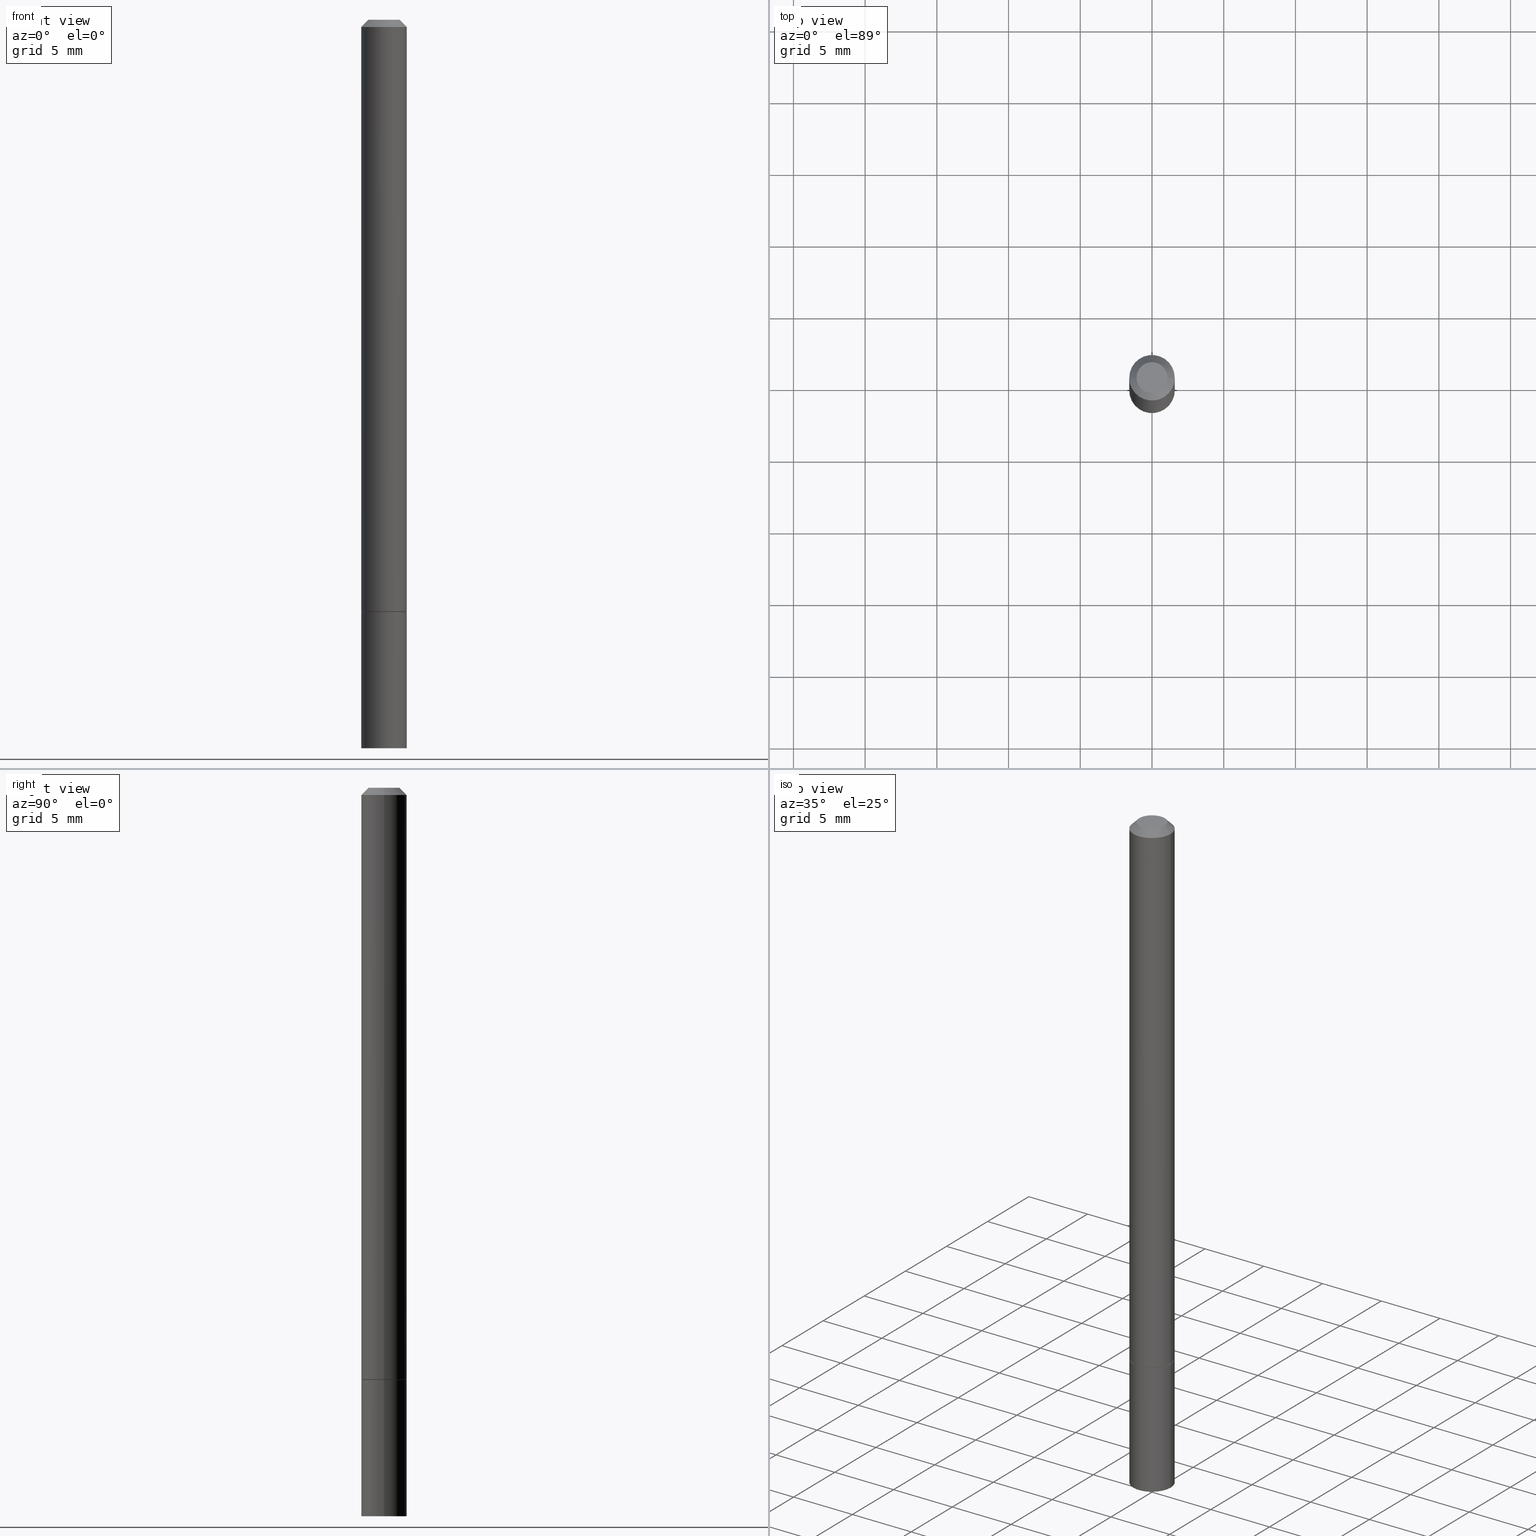
[diagram: canonical four-view strip — front | top / right | iso, engineering-drawing reading convention]
A machine part, canonical four-view strip (front | top / right | iso — engineering-drawing reading convention). The complete STEP part file that produces these views, byte-faithful:
ISO-10303-21;
HEADER;
FILE_DESCRIPTION (( 'STEP AP203' ),
    '1' );
FILE_NAME ('37396.STEP',
    '2024-02-27T21:26:25',
    ( '' ),
    ( '' ),
    'SwSTEP 2.0',
    'SolidWorks 2023',
    '' );
FILE_SCHEMA (( 'CONFIG_CONTROL_DESIGN' ));
ENDSEC;

DATA;
#1 = CARTESIAN_POINT ( 'NONE',  ( 4.364351673554406281E-16, 0.06249999999999303335, -2.000000000000000444 ) ) ;
#2 = DIRECTION ( 'NONE',  ( 1.000000000000000000, -6.982962677686261189E-15, 0.000000000000000000 ) ) ;
#3 = AXIS2_PLACEMENT_3D ( 'NONE', #246, #74, #278 ) ;
#4 = ADVANCED_FACE ( 'NONE', ( #73 ), #261, .T. ) ;
#5 = DIRECTION ( 'NONE',  ( 0.7071067811865464625, -7.319954787623252890E-15, -0.7071067811865486830 ) ) ;
#6 = PERSON_AND_ORGANIZATION ( #314, #109 ) ;
#7 = DIRECTION ( 'NONE',  ( 1.000000000000000000, -6.982962677686260400E-15, 0.000000000000000000 ) ) ;
#8 = FACE_OUTER_BOUND ( 'NONE', #296, .T. ) ;
#9 = PERSON_AND_ORGANIZATION_ROLE ( 'creator' ) ;
#10 = DIRECTION ( 'NONE',  ( 1.000000000000000000, -6.982962677686266711E-15, 0.000000000000000000 ) ) ;
#11 = DATE_AND_TIME ( #157, #143 ) ;
#12 = CARTESIAN_POINT ( 'NONE',  ( 0.06249999999999991673, -4.364351673553910778E-16, 3.047610484872455667E-30 ) ) ;
#13 = VERTEX_POINT ( 'NONE', #302 ) ;
#14 = EDGE_CURVE ( 'NONE', #99, #220, #193, .T. ) ;
#15 = AXIS2_PLACEMENT_3D ( 'NONE', #227, #342, #263 ) ;
#16 = AXIS2_PLACEMENT_3D ( 'NONE', #330, #182, #71 ) ;
#17 = EDGE_LOOP ( 'NONE', ( #136, #252 ) ) ;
#18 = FACE_OUTER_BOUND ( 'NONE', #305, .T. ) ;
#19 = ADVANCED_FACE ( 'NONE', ( #191 ), #216, .F. ) ;
#20 = ORIENTED_EDGE ( 'NONE', *, *, #197, .F. ) ;
#21 = EDGE_LOOP ( 'NONE', ( #361, #243, #277, #334 ) ) ;
#22 = EDGE_LOOP ( 'NONE', ( #236, #335, #362, #162 ) ) ;
#23 = ADVANCED_FACE ( 'NONE', ( #18 ), #51, .T. ) ;
#24 = DIRECTION ( 'NONE',  ( -2.445468806185136597E-29, 3.491481338843145583E-15, 1.000000000000000000 ) ) ;
#25 = LINE ( 'NONE', #255, #242 ) ;
#26 = FACE_OUTER_BOUND ( 'NONE', #22, .T. ) ;
#27 = LINE ( 'NONE', #140, #262 ) ;
#28 = AXIS2_PLACEMENT_3D ( 'NONE', #61, #285, #366 ) ;
#29 = CARTESIAN_POINT ( 'NONE',  ( 4.890937612370274910E-31, -6.982962677686295307E-17, -0.02000000000000000736 ) ) ;
#30 = AXIS2_PLACEMENT_3D ( 'NONE', #281, #358, #337 ) ;
#31 = CIRCLE ( 'NONE', #213, 0.06250000000000001388 ) ;
#32 = CYLINDRICAL_SURFACE ( 'NONE', #298, 0.06249999999999991673 ) ;
#33 = ORIENTED_EDGE ( 'NONE', *, *, #14, .T. ) ;
#34 = ADVANCED_FACE ( 'NONE', ( #60 ), #288, .T. ) ;
#35 = DIRECTION ( 'NONE',  ( -2.445468806185136597E-29, 3.491481338843145583E-15, 1.000000000000000000 ) ) ;
#36 = ORIENTED_EDGE ( 'NONE', *, *, #348, .F. ) ;
#37 = CLOSED_SHELL ( 'NONE', ( #293, #34, #52, #4, #218, #102, #199, #19 ) ) ;
#38 = PRODUCT_DEFINITION_SHAPE ( 'NONE', 'NONE',  #135 ) ;
#39 = DIRECTION ( 'NONE',  ( 1.000000000000000000, -6.982962677686261189E-15, 0.000000000000000000 ) ) ;
#40 = EDGE_CURVE ( 'NONE', #217, #184, #339, .T. ) ;
#41 = APPROVAL_DATE_TIME ( #325, #190 ) ;
#42 = CARTESIAN_POINT ( 'NONE',  ( 4.890937612370274910E-31, -6.982962677686295307E-17, -0.02000000000000000736 ) ) ;
#43 = PRODUCT_RELATED_PRODUCT_CATEGORY ( 'detail', '', ( #245 ) ) ;
#44 = APPROVAL_STATUS ( 'not_yet_approved' ) ;
#45 = ORIENTED_EDGE ( 'NONE', *, *, #105, .T. ) ;
#46 = AXIS2_PLACEMENT_3D ( 'NONE', #347, #142, #2 ) ;
#47 = COORDINATED_UNIVERSAL_TIME_OFFSET ( 5, 0, .BEHIND. ) ;
#48 = APPROVAL_PERSON_ORGANIZATION ( #145, #190, #120 ) ;
#49 = DIRECTION ( 'NONE',  ( -1.000000000000000000, 6.982962677686265922E-15, -4.876176775795935793E-29 ) ) ;
#50 = VERTEX_POINT ( 'NONE', #223 ) ;
#51 = CYLINDRICAL_SURFACE ( 'NONE', #307, 0.06250000000000001388 ) ;
#52 = ADVANCED_FACE ( 'NONE', ( #81 ), #108, .T. ) ;
#53 = ORIENTED_EDGE ( 'NONE', *, *, #202, .F. ) ;
#54 =( NAMED_UNIT ( * ) PLANE_ANGLE_UNIT ( ) SI_UNIT ( $, .RADIAN. ) );
#55 = DIRECTION ( 'NONE',  ( 0.7071067811865232589, -2.468850131082003836E-15, 0.7071067811865715536 ) ) ;
#56 = DESIGN_CONTEXT ( 'detailed design', #273, 'design' ) ;
#57 =( NAMED_UNIT ( * ) SI_UNIT ( $, .STERADIAN. ) SOLID_ANGLE_UNIT ( ) );
#58 = DIRECTION ( 'NONE',  ( -0.7071067811865232589, 7.493145998870265808E-15, 0.7071067811865715536 ) ) ;
#59 = DIRECTION ( 'NONE',  ( -1.000000000000000000, 6.982962677686266711E-15, 0.000000000000000000 ) ) ;
#60 = FACE_OUTER_BOUND ( 'NONE', #304, .T. ) ;
#61 = CARTESIAN_POINT ( 'NONE',  ( 3.971441341244661927E-29, -5.670165694281268417E-15, -1.623999999999999888 ) ) ;
#62 = COORDINATED_UNIVERSAL_TIME_OFFSET ( 5, 0, .BEHIND. ) ;
#63 = AXIS2_PLACEMENT_3D ( 'NONE', #328, #265, #315 ) ;
#64 = PERSON_AND_ORGANIZATION ( #314, #109 ) ;
#65 = VECTOR ( 'NONE', #287, 39.37007874015748143 ) ;
#66 = MANIFOLD_SOLID_BREP ( 'Body-Move/Copy2[1]', #200 ) ;
#67 = EDGE_CURVE ( 'NONE', #99, #219, #144, .T. ) ;
#68 = DIRECTION ( 'NONE',  ( 1.000000000000000000, -6.982962677686267499E-15, 4.876176775795935793E-29 ) ) ;
#69 = DIRECTION ( 'NONE',  ( -2.445468806185136597E-29, 3.491481338843145583E-15, 1.000000000000000000 ) ) ;
#70 = CARTESIAN_POINT ( 'NONE',  ( 0.000000000000000000, 0.000000000000000000, 0.000000000000000000 ) ) ;
#71 = DIRECTION ( 'NONE',  ( -1.000000000000000000, 6.982962677686265922E-15, -4.876176775795935793E-29 ) ) ;
#72 = ORIENTED_EDGE ( 'NONE', *, *, #309, .F. ) ;
#73 = FACE_OUTER_BOUND ( 'NONE', #148, .T. ) ;
#74 = DIRECTION ( 'NONE',  ( -2.445468806185136597E-29, 3.491481338843145583E-15, 1.000000000000000000 ) ) ;
#75 = VERTEX_POINT ( 'NONE', #284 ) ;
#76 = VECTOR ( 'NONE', #128, 39.37007874015748143 ) ;
#77 = AXIS2_PLACEMENT_3D ( 'NONE', #340, #203, #316 ) ;
#78 = CIRCLE ( 'NONE', #28, 0.06250000000000001388 ) ;
#79 = CARTESIAN_POINT ( 'NONE',  ( 0.000000000000000000, 0.000000000000000000, 0.000000000000000000 ) ) ;
#80 = LENGTH_MEASURE_WITH_UNIT ( LENGTH_MEASURE( 0.02539999999999999897 ), #112 );
#81 = FACE_OUTER_BOUND ( 'NONE', #21, .T. ) ;
#82 = CARTESIAN_POINT ( 'NONE',  ( 0.06150000000000001299, -6.103109380297817079E-15, -1.625000000000000000 ) ) ;
#83 = CIRCLE ( 'NONE', #129, 0.06250000000000001388 ) ;
#84 = DIRECTION ( 'NONE',  ( -1.000000000000000000, 6.982962677686265922E-15, -4.876176775795935793E-29 ) ) ;
#85 = MECHANICAL_CONTEXT ( 'NONE', #251, 'mechanical' ) ;
#86 = DIRECTION ( 'NONE',  ( -2.445468806185136597E-29, 3.491481338843145583E-15, 1.000000000000000000 ) ) ;
#87 = EDGE_CURVE ( 'NONE', #75, #13, #155, .T. ) ;
#88 = PLANE ( 'NONE',  #180 ) ;
#89 = CIRCLE ( 'NONE', #322, 0.06249999999999981265 ) ;
#90 = CARTESIAN_POINT ( 'NONE',  ( 0.06250000000000001388, -4.364351673553918173E-16, 3.047610484872460571E-30 ) ) ;
#91 = AXIS2_PLACEMENT_3D ( 'NONE', #196, #86, #286 ) ;
#92 = DIRECTION ( 'NONE',  ( -2.445468806185136597E-29, 3.491481338843145583E-15, 1.000000000000000000 ) ) ;
#93 = APPROVAL_ROLE ( '' ) ;
#94 = EDGE_CURVE ( 'NONE', #13, #332, #259, .T. ) ;
#95 = PLANE ( 'NONE',  #16 ) ;
#96 = CIRCLE ( 'NONE', #207, 0.06150000000000001299 ) ;
#97 = ORIENTED_EDGE ( 'NONE', *, *, #40, .T. ) ;
#98 = EDGE_CURVE ( 'NONE', #332, #50, #31, .T. ) ;
#99 = VERTEX_POINT ( 'NONE', #311 ) ;
#100 = ORIENTED_EDGE ( 'NONE', *, *, #87, .T. ) ;
#101 = EDGE_LOOP ( 'NONE', ( #20, #97, #356, #300 ) ) ;
#102 = ADVANCED_FACE ( 'NONE', ( #26 ), #355, .T. ) ;
#103 = ORIENTED_EDGE ( 'NONE', *, *, #177, .F. ) ;
#104 = EDGE_CURVE ( 'NONE', #189, #184, #25, .T. ) ;
#105 = EDGE_CURVE ( 'NONE', #306, #217, #260, .T. ) ;
#106 = EDGE_LOOP ( 'NONE', ( #158, #33 ) ) ;
#107 = CIRCLE ( 'NONE', #363, 0.06150000000000001299 ) ;
#108 = CONICAL_SURFACE ( 'NONE', #321, 0.06249999999999981265, 0.7853981633974467247 ) ;
#109 = ORGANIZATION ( 'UNSPECIFIED', 'UNSPECIFIED', '' ) ;
#110 = CARTESIAN_POINT ( 'NONE',  ( -0.06249999999999981265, 3.666055405785273851E-16, -0.02000000000000000736 ) ) ;
#111 = LINE ( 'NONE', #115, #65 ) ;
#112 =( LENGTH_UNIT ( ) NAMED_UNIT ( * ) SI_UNIT ( $, .METRE. ) );
#113 = DIRECTION ( 'NONE',  ( -2.445468806185136597E-29, 3.491481338843145583E-15, 1.000000000000000000 ) ) ;
#114 = PRODUCT_DEFINITION_FORMATION_WITH_SPECIFIED_SOURCE ( 'ANY', '', #245, .NOT_KNOWN. ) ;
#115 = CARTESIAN_POINT ( 'NONE',  ( -0.06249999999999981265, 3.666055405785273851E-16, -0.02000000000000000736 ) ) ;
#116 = EDGE_CURVE ( 'NONE', #50, #332, #291, .T. ) ;
#117 = DIRECTION ( 'NONE',  ( -2.445468806185136597E-29, 3.491481338843145583E-15, 1.000000000000000000 ) ) ;
#118 = CALENDAR_DATE ( 2024, 27, 2 ) ;
#119 = DIRECTION ( 'NONE',  ( 1.000000000000000000, -6.982962677686266711E-15, 4.876176775795935793E-29 ) ) ;
#120 = APPROVAL_ROLE ( '' ) ;
#121 = CYLINDRICAL_SURFACE ( 'NONE', #173, 0.06250000000000001388 ) ;
#122 = ADVANCED_FACE ( 'NONE', ( #165 ), #364, .T. ) ;
#123 = PERSON_AND_ORGANIZATION ( #314, #109 ) ;
#124 = CARTESIAN_POINT ( 'NONE',  ( 3.973886810050846970E-29, -5.673657175620112213E-15, -1.625000000000000000 ) ) ;
#125 = CC_DESIGN_PERSON_AND_ORGANIZATION_ASSIGNMENT ( #126, #9, ( #114 ) ) ;
#126 = PERSON_AND_ORGANIZATION ( #314, #109 ) ;
#127 = ORIENTED_EDGE ( 'NONE', *, *, #197, .T. ) ;
#128 = DIRECTION ( 'NONE',  ( -2.445468806185136877E-29, 3.491481338843145188E-15, 1.000000000000000000 ) ) ;
#129 = AXIS2_PLACEMENT_3D ( 'NONE', #353, #35, #39 ) ;
#130 = PERSON_AND_ORGANIZATION ( #314, #109 ) ;
#131 = ORIENTED_EDGE ( 'NONE', *, *, #98, .F. ) ;
#132 = ORIENTED_EDGE ( 'NONE', *, *, #331, .T. ) ;
#133 = VERTEX_POINT ( 'NONE', #110 ) ;
#134 = DIRECTION ( 'NONE',  ( 2.438088387897960049E-29, -3.491481338843145188E-15, -1.000000000000000000 ) ) ;
#135 = PRODUCT_DEFINITION ( 'UNKNOWN', '', #114, #56 ) ;
#136 = ORIENTED_EDGE ( 'NONE', *, *, #87, .F. ) ;
#137 = DIRECTION ( 'NONE',  ( 2.445468806185136597E-29, -3.491481338843145583E-15, -1.000000000000000000 ) ) ;
#138 = LOCAL_TIME ( 16, 26, 25.00000000000000000, #62 ) ;
#139 = DIRECTION ( 'NONE',  ( -2.445468806185136597E-29, 3.491481338843145583E-15, 1.000000000000000000 ) ) ;
#140 = CARTESIAN_POINT ( 'NONE',  ( -0.06249999999999991673, 4.440892098500620245E-16, -3.074334431409311910E-30 ) ) ;
#141 = UNCERTAINTY_MEASURE_WITH_UNIT (LENGTH_MEASURE( 1.000000000000000082E-05 ), #221, 'distance_accuracy_value', 'NONE');
#142 = DIRECTION ( 'NONE',  ( -2.445468806185136597E-29, 3.491481338843145583E-15, 1.000000000000000000 ) ) ;
#143 = LOCAL_TIME ( 16, 26, 25.00000000000000000, #47 ) ;
#144 = LINE ( 'NONE', #198, #224 ) ;
#145 = PERSON_AND_ORGANIZATION ( #314, #109 ) ;
#146 = PERSON_AND_ORGANIZATION_ROLE ( 'design_owner' ) ;
#147 = CARTESIAN_POINT ( 'NONE',  ( 4.890937612370274910E-31, -6.982962677686295307E-17, -0.02000000000000000736 ) ) ;
#148 = EDGE_LOOP ( 'NONE', ( #280, #103, #274, #250 ) ) ;
#149 = CC_DESIGN_PERSON_AND_ORGANIZATION_ASSIGNMENT ( #6, #320, ( #114 ) ) ;
#150 = DIRECTION ( 'NONE',  ( -2.445468806185136877E-29, 3.491481338843145188E-15, 1.000000000000000000 ) ) ;
#151 = CARTESIAN_POINT ( 'NONE',  ( 0.000000000000000000, 0.000000000000000000, 0.000000000000000000 ) ) ;
#152 = DATE_AND_TIME ( #290, #249 ) ;
#153 = EDGE_CURVE ( 'NONE', #184, #217, #78, .T. ) ;
#154 = APPROVAL_PERSON_ORGANIZATION ( #64, #183, #93 ) ;
#155 = CIRCLE ( 'NONE', #208, 0.06250000000000001388 ) ;
#156 = AXIS2_PLACEMENT_3D ( 'NONE', #124, #272, #230 ) ;
#157 = CALENDAR_DATE ( 2024, 27, 2 ) ;
#158 = ORIENTED_EDGE ( 'NONE', *, *, #177, .T. ) ;
#159 = APPROVAL_ROLE ( '' ) ;
#160 = EDGE_CURVE ( 'NONE', #220, #133, #111, .T. ) ;
#161 = EDGE_LOOP ( 'NONE', ( #360, #308 ) ) ;
#162 = ORIENTED_EDGE ( 'NONE', *, *, #40, .F. ) ;
#163 = SECURITY_CLASSIFICATION ( '', '', #317 ) ;
#164 = ORIENTED_EDGE ( 'NONE', *, *, #116, .T. ) ;
#165 = FACE_OUTER_BOUND ( 'NONE', #17, .T. ) ;
#166 = CARTESIAN_POINT ( 'NONE',  ( 4.890937612370273194E-29, -6.982962677686291165E-15, -2.000000000000000000 ) ) ;
#167 = CARTESIAN_POINT ( 'NONE',  ( 3.973886810050846970E-29, -5.673657175620112213E-15, -1.625000000000000000 ) ) ;
#168 = FACE_OUTER_BOUND ( 'NONE', #161, .T. ) ;
#169 = CC_DESIGN_PERSON_AND_ORGANIZATION_ASSIGNMENT ( #123, #264, ( #163 ) ) ;
#170 = CARTESIAN_POINT ( 'NONE',  ( 5.219257071676098903E-46, -7.451715851902235727E-32, -2.134256245050205639E-17 ) ) ;
#171 = COORDINATED_UNIVERSAL_TIME_OFFSET ( 5, 0, .BEHIND. ) ;
#172 = APPROVAL_PERSON_ORGANIZATION ( #181, #253, #159 ) ;
#173 = AXIS2_PLACEMENT_3D ( 'NONE', #151, #92, #68 ) ;
#174 = CARTESIAN_POINT ( 'NONE',  ( 3.973886810050846970E-29, -5.673657175620112213E-15, -1.625000000000000000 ) ) ;
#175 = EDGE_LOOP ( 'NONE', ( #292, #45, #338, #283 ) ) ;
#176 = FACE_OUTER_BOUND ( 'NONE', #175, .T. ) ;
#177 = EDGE_CURVE ( 'NONE', #220, #99, #275, .T. ) ;
#178 = CARTESIAN_POINT ( 'NONE',  ( -0.06250000000000001388, -5.884220716803138678E-15, -1.625000000000000000 ) ) ;
#179 = CARTESIAN_POINT ( 'NONE',  ( -0.06250000000000001388, -2.425908450678998508E-15, -1.623999999999999888 ) ) ;
#180 = AXIS2_PLACEMENT_3D ( 'NONE', #349, #209, #235 ) ;
#181 = PERSON_AND_ORGANIZATION ( #314, #109 ) ;
#182 = DIRECTION ( 'NONE',  ( 2.438088387897960049E-29, -3.491481338843145188E-15, -1.000000000000000000 ) ) ;
#183 = APPROVAL ( #211, 'UNSPECIFIED' ) ;
#184 = VERTEX_POINT ( 'NONE', #201 ) ;
#185 = MANIFOLD_SOLID_BREP ( 'Body-Move/Copy2[2]', #37 ) ;
#186 = CARTESIAN_POINT ( 'NONE',  ( 2.967759138016655168E-16, 0.04249999999999988509, -1.590592381260843181E-16 ) ) ;
#187 = CC_DESIGN_SECURITY_CLASSIFICATION ( #163, ( #114 ) ) ;
#188 = COORDINATED_UNIVERSAL_TIME_OFFSET ( 5, 0, .BEHIND. ) ;
#189 = VERTEX_POINT ( 'NONE', #82 ) ;
#190 = APPROVAL ( #233, 'UNSPECIFIED' ) ;
#191 = FACE_OUTER_BOUND ( 'NONE', #106, .T. ) ;
#192 = EDGE_LOOP ( 'NONE', ( #164, #215 ) ) ;
#193 = CIRCLE ( 'NONE', #3, 0.04249999999999988509 ) ;
#194 = VECTOR ( 'NONE', #150, 39.37007874015748143 ) ;
#195 = DIRECTION ( 'NONE',  ( 1.000000000000000000, -6.982962677686261189E-15, 0.000000000000000000 ) ) ;
#196 = CARTESIAN_POINT ( 'NONE',  ( 3.973886810050846970E-29, -5.673657175620112213E-15, -1.625000000000000000 ) ) ;
#197 = EDGE_CURVE ( 'NONE', #217, #133, #27, .T. ) ;
#198 = CARTESIAN_POINT ( 'NONE',  ( 0.06249999999999981265, -4.986107516375823445E-16, -0.02000000000000000736 ) ) ;
#199 = ADVANCED_FACE ( 'NONE', ( #168 ), #88, .F. ) ;
#200 = CLOSED_SHELL ( 'NONE', ( #346, #122, #357, #23 ) ) ;
#201 = CARTESIAN_POINT ( 'NONE',  ( 0.06250000000000001388, -6.106600861636660086E-15, -1.623999999999999888 ) ) ;
#202 = EDGE_CURVE ( 'NONE', #75, #50, #205, .T. ) ;
#203 = DIRECTION ( 'NONE',  ( -2.445468806185136597E-29, 3.491481338843145583E-15, 1.000000000000000000 ) ) ;
#204 = DATE_TIME_ROLE ( 'creation_date' ) ;
#205 = LINE ( 'NONE', #90, #194 ) ;
#206 = COORDINATED_UNIVERSAL_TIME_OFFSET ( 5, 0, .BEHIND. ) ;
#207 = AXIS2_PLACEMENT_3D ( 'NONE', #174, #69, #7 ) ;
#208 = AXIS2_PLACEMENT_3D ( 'NONE', #166, #24, #195 ) ;
#209 = DIRECTION ( 'NONE',  ( -2.438088387897960049E-29, 3.491481338843145188E-15, 1.000000000000000000 ) ) ;
#210 = DIRECTION ( 'NONE',  ( 1.000000000000000000, -6.982962677686266711E-15, 0.000000000000000000 ) ) ;
#211 = APPROVAL_STATUS ( 'not_yet_approved' ) ;
#212 = EDGE_CURVE ( 'NONE', #306, #189, #107, .T. ) ;
#213 = AXIS2_PLACEMENT_3D ( 'NONE', #167, #139, #310 ) ;
#214 = EDGE_CURVE ( 'NONE', #189, #306, #96, .T. ) ;
#215 = ORIENTED_EDGE ( 'NONE', *, *, #98, .T. ) ;
#216 = PLANE ( 'NONE',  #241 ) ;
#217 = VERTEX_POINT ( 'NONE', #179 ) ;
#218 = ADVANCED_FACE ( 'NONE', ( #232 ), #32, .T. ) ;
#219 = VERTEX_POINT ( 'NONE', #299 ) ;
#220 = VERTEX_POINT ( 'NONE', #351 ) ;
#221 =( CONVERSION_BASED_UNIT ( 'INCH', #80 ) LENGTH_UNIT ( ) NAMED_UNIT ( #323 ) );
#222 = CONICAL_SURFACE ( 'NONE', #156, 0.06150000000000001299, 0.7853981633974141952 ) ;
#223 = CARTESIAN_POINT ( 'NONE',  ( 0.06250000000000001388, -6.110092342975503093E-15, -1.625000000000000000 ) ) ;
#224 = VECTOR ( 'NONE', #5, 39.37007874015748143 ) ;
#225 = CARTESIAN_POINT ( 'NONE',  ( -0.06150000000000001299, -5.236673393127650605E-15, -1.625000000000000000 ) ) ;
#226 = CARTESIAN_POINT ( 'NONE',  ( -0.06250000000000001388, 4.440892098500627148E-16, -3.074334431409317165E-30 ) ) ;
#227 = CARTESIAN_POINT ( 'NONE',  ( 3.971441341244661927E-29, -5.670165694281268417E-15, -1.623999999999999888 ) ) ;
#228 = CC_DESIGN_DATE_AND_TIME_ASSIGNMENT ( #326, #297, ( #163 ) ) ;
#229 = DIRECTION ( 'NONE',  ( -2.445468806185136877E-29, 3.491481338843145188E-15, 1.000000000000000000 ) ) ;
#230 = DIRECTION ( 'NONE',  ( 1.000000000000000000, -6.982962677686260400E-15, 0.000000000000000000 ) ) ;
#231 = SHAPE_DEFINITION_REPRESENTATION ( #38, #237 ) ;
#232 = FACE_OUTER_BOUND ( 'NONE', #101, .T. ) ;
#233 = APPROVAL_STATUS ( 'not_yet_approved' ) ;
#234 = APPROVAL_DATE_TIME ( #152, #183 ) ;
#235 = DIRECTION ( 'NONE',  ( 1.000000000000000000, -6.982962677686265922E-15, 4.876176775795935793E-29 ) ) ;
#236 = ORIENTED_EDGE ( 'NONE', *, *, #105, .F. ) ;
#237 = ADVANCED_BREP_SHAPE_REPRESENTATION ( '37396', ( #66, #185, #63 ), #276 ) ;
#238 = FACE_OUTER_BOUND ( 'NONE', #192, .T. ) ;
#239 = DATE_AND_TIME ( #279, #365 ) ;
#240 = VECTOR ( 'NONE', #58, 39.37007874015748854 ) ;
#241 = AXIS2_PLACEMENT_3D ( 'NONE', #186, #134, #49 ) ;
#242 = VECTOR ( 'NONE', #55, 39.37007874015748854 ) ;
#243 = ORIENTED_EDGE ( 'NONE', *, *, #67, .T. ) ;
#244 = PERSON_AND_ORGANIZATION_ROLE ( 'creator' ) ;
#245 = PRODUCT ( '37396', '37396', '', ( #85 ) ) ;
#246 = CARTESIAN_POINT ( 'NONE',  ( 5.219257071676098903E-46, -7.451715851902235727E-32, -2.134256245050205639E-17 ) ) ;
#247 = ORIENTED_EDGE ( 'NONE', *, *, #202, .T. ) ;
#248 = ORIENTED_EDGE ( 'NONE', *, *, #94, .F. ) ;
#249 = LOCAL_TIME ( 16, 26, 25.00000000000000000, #171 ) ;
#250 = ORIENTED_EDGE ( 'NONE', *, *, #336, .T. ) ;
#251 = APPLICATION_CONTEXT ( 'configuration controlled 3d designs of mechanical parts and assemblies' ) ;
#252 = ORIENTED_EDGE ( 'NONE', *, *, #331, .F. ) ;
#253 = APPROVAL ( #44, 'UNSPECIFIED' ) ;
#254 = CC_DESIGN_APPROVAL ( #190, ( #114 ) ) ;
#255 = CARTESIAN_POINT ( 'NONE',  ( 0.06150000000000001299, -6.103109380297817079E-15, -1.625000000000000000 ) ) ;
#256 = VECTOR ( 'NONE', #229, 39.37007874015748143 ) ;
#257 = DIRECTION ( 'NONE',  ( 2.438088387897960049E-29, -3.491481338843145188E-15, -1.000000000000000000 ) ) ;
#258 = CC_DESIGN_PERSON_AND_ORGANIZATION_ASSIGNMENT ( #294, #146, ( #245 ) ) ;
#259 = LINE ( 'NONE', #226, #256 ) ;
#260 = LINE ( 'NONE', #225, #240 ) ;
#261 = CONICAL_SURFACE ( 'NONE', #30, 0.06249999999999981265, 0.7853981633974467247 ) ;
#262 = VECTOR ( 'NONE', #313, 39.37007874015748143 ) ;
#263 = DIRECTION ( 'NONE',  ( 1.000000000000000000, -6.982962677686261189E-15, 0.000000000000000000 ) ) ;
#264 = PERSON_AND_ORGANIZATION_ROLE ( 'classification_officer' ) ;
#265 = DIRECTION ( 'NONE',  ( 0.000000000000000000, 0.000000000000000000, 1.000000000000000000 ) ) ;
#266 = APPLICATION_PROTOCOL_DEFINITION ( 'international standard', 'config_control_design', 1994, #273 ) ;
#267 = DIRECTION ( 'NONE',  ( -2.445468806185136597E-29, 3.491481338843145583E-15, 1.000000000000000000 ) ) ;
#268 = ORIENTED_EDGE ( 'NONE', *, *, #94, .T. ) ;
#269 = LINE ( 'NONE', #12, #76 ) ;
#270 = CALENDAR_DATE ( 2024, 27, 2 ) ;
#271 = ORIENTED_EDGE ( 'NONE', *, *, #153, .T. ) ;
#272 = DIRECTION ( 'NONE',  ( -2.445468806185136597E-29, 3.491481338843145583E-15, 1.000000000000000000 ) ) ;
#273 = APPLICATION_CONTEXT ( 'configuration controlled 3d designs of mechanical parts and assemblies' ) ;
#274 = ORIENTED_EDGE ( 'NONE', *, *, #160, .T. ) ;
#275 = CIRCLE ( 'NONE', #341, 0.04249999999999988509 ) ;
#276 =( GEOMETRIC_REPRESENTATION_CONTEXT ( 3 ) GLOBAL_UNCERTAINTY_ASSIGNED_CONTEXT ( ( #141 ) ) GLOBAL_UNIT_ASSIGNED_CONTEXT ( ( #221, #54, #57 ) ) REPRESENTATION_CONTEXT ( 'NONE', 'WORKASPACE' ) );
#277 = ORIENTED_EDGE ( 'NONE', *, *, #309, .T. ) ;
#278 = DIRECTION ( 'NONE',  ( 1.000000000000000000, -6.982962677686267499E-15, 4.879498284297456879E-29 ) ) ;
#279 = CALENDAR_DATE ( 2024, 27, 2 ) ;
#280 = ORIENTED_EDGE ( 'NONE', *, *, #67, .F. ) ;
#281 = CARTESIAN_POINT ( 'NONE',  ( 4.890937612370274910E-31, -6.982962677686295307E-17, -0.02000000000000000736 ) ) ;
#282 = CC_DESIGN_APPROVAL ( #183, ( #163 ) ) ;
#283 = ORIENTED_EDGE ( 'NONE', *, *, #104, .F. ) ;
#284 = CARTESIAN_POINT ( 'NONE',  ( 0.06250000000000001388, -7.419397845041682046E-15, -2.000000000000000000 ) ) ;
#285 = DIRECTION ( 'NONE',  ( -2.445468806185136597E-29, 3.491481338843145583E-15, 1.000000000000000000 ) ) ;
#286 = DIRECTION ( 'NONE',  ( 1.000000000000000000, -6.982962677686260400E-15, 0.000000000000000000 ) ) ;
#287 = DIRECTION ( 'NONE',  ( -0.7071067811865464625, 2.468850131082245228E-15, -0.7071067811865486830 ) ) ;
#288 = CYLINDRICAL_SURFACE ( 'NONE', #77, 0.06249999999999991673 ) ;
#289 = AXIS2_PLACEMENT_3D ( 'NONE', #1, #257, #84 ) ;
#290 = CALENDAR_DATE ( 2024, 27, 2 ) ;
#291 = CIRCLE ( 'NONE', #46, 0.06250000000000001388 ) ;
#292 = ORIENTED_EDGE ( 'NONE', *, *, #214, .T. ) ;
#293 = ADVANCED_FACE ( 'NONE', ( #176 ), #222, .T. ) ;
#294 = PERSON_AND_ORGANIZATION ( #314, #109 ) ;
#295 = CARTESIAN_POINT ( 'NONE',  ( 3.973886810050846970E-29, -5.673657175620112213E-15, -1.625000000000000000 ) ) ;
#296 = EDGE_LOOP ( 'NONE', ( #100, #268, #359, #53 ) ) ;
#297 = DATE_TIME_ROLE ( 'classification_date' ) ;
#298 = AXIS2_PLACEMENT_3D ( 'NONE', #70, #301, #119 ) ;
#299 = CARTESIAN_POINT ( 'NONE',  ( 0.06249999999999981265, -4.986107516375823445E-16, -0.02000000000000000736 ) ) ;
#300 = ORIENTED_EDGE ( 'NONE', *, *, #336, .F. ) ;
#301 = DIRECTION ( 'NONE',  ( -2.445468806185136597E-29, 3.491481338843145583E-15, 1.000000000000000000 ) ) ;
#302 = CARTESIAN_POINT ( 'NONE',  ( -0.06250000000000001388, -5.884220716803138678E-15, -2.000000000000000000 ) ) ;
#303 = LOCAL_TIME ( 16, 26, 25.00000000000000000, #206 ) ;
#304 = EDGE_LOOP ( 'NONE', ( #271, #127, #72, #36 ) ) ;
#305 = EDGE_LOOP ( 'NONE', ( #248, #132, #247, #131 ) ) ;
#306 = VERTEX_POINT ( 'NONE', #324 ) ;
#307 = AXIS2_PLACEMENT_3D ( 'NONE', #79, #312, #344 ) ;
#308 = ORIENTED_EDGE ( 'NONE', *, *, #212, .F. ) ;
#309 = EDGE_CURVE ( 'NONE', #219, #133, #345, .T. ) ;
#310 = DIRECTION ( 'NONE',  ( 1.000000000000000000, -6.982962677686261189E-15, 0.000000000000000000 ) ) ;
#311 = CARTESIAN_POINT ( 'NONE',  ( 0.04249999999999988509, -3.950909582714358571E-16, -2.134256245049963743E-17 ) ) ;
#312 = DIRECTION ( 'NONE',  ( -2.445468806185136597E-29, 3.491481338843145583E-15, 1.000000000000000000 ) ) ;
#313 = DIRECTION ( 'NONE',  ( -2.445468806185136877E-29, 3.491481338843145188E-15, 1.000000000000000000 ) ) ;
#314 = PERSON ( 'UNSPECIFIED', 'UNSPECIFIED', 'UNSPECIFIED', ('UNSPECIFIED'), ('UNSPECIFIED'), ('UNSPECIFIED') ) ;
#315 = DIRECTION ( 'NONE',  ( 1.000000000000000000, 0.000000000000000000, 0.000000000000000000 ) ) ;
#316 = DIRECTION ( 'NONE',  ( 1.000000000000000000, -6.982962677686266711E-15, 4.876176775795935793E-29 ) ) ;
#317 = SECURITY_CLASSIFICATION_LEVEL ( 'unclassified' ) ;
#318 = DIRECTION ( 'NONE',  ( -2.445468806185136597E-29, 3.491481338843145583E-15, 1.000000000000000000 ) ) ;
#319 = AXIS2_PLACEMENT_3D ( 'NONE', #42, #117, #10 ) ;
#320 = PERSON_AND_ORGANIZATION_ROLE ( 'design_supplier' ) ;
#321 = AXIS2_PLACEMENT_3D ( 'NONE', #29, #137, #59 ) ;
#322 = AXIS2_PLACEMENT_3D ( 'NONE', #147, #267, #210 ) ;
#323 = DIMENSIONAL_EXPONENTS ( 1.000000000000000000, 0.000000000000000000, 0.000000000000000000, 0.000000000000000000, 0.000000000000000000, 0.000000000000000000, 0.000000000000000000 ) ;
#324 = CARTESIAN_POINT ( 'NONE',  ( -0.06150000000000001299, -5.231374938779427414E-15, -1.625000000000000000 ) ) ;
#325 = DATE_AND_TIME ( #270, #303 ) ;
#326 = DATE_AND_TIME ( #118, #138 ) ;
#327 = CC_DESIGN_PERSON_AND_ORGANIZATION_ASSIGNMENT ( #130, #244, ( #135 ) ) ;
#328 = CARTESIAN_POINT ( 'NONE',  ( 0.000000000000000000, 0.000000000000000000, 0.000000000000000000 ) ) ;
#329 = CC_DESIGN_APPROVAL ( #253, ( #135 ) ) ;
#330 = CARTESIAN_POINT ( 'NONE',  ( 4.364351673554314576E-16, 0.06249999999999433786, -1.625000000000000222 ) ) ;
#331 = EDGE_CURVE ( 'NONE', #13, #75, #83, .T. ) ;
#332 = VERTEX_POINT ( 'NONE', #178 ) ;
#333 = CC_DESIGN_DATE_AND_TIME_ASSIGNMENT ( #11, #204, ( #135 ) ) ;
#334 = ORIENTED_EDGE ( 'NONE', *, *, #160, .F. ) ;
#335 = ORIENTED_EDGE ( 'NONE', *, *, #212, .T. ) ;
#336 = EDGE_CURVE ( 'NONE', #133, #219, #89, .T. ) ;
#337 = DIRECTION ( 'NONE',  ( -1.000000000000000000, 6.982962677686266711E-15, 0.000000000000000000 ) ) ;
#338 = ORIENTED_EDGE ( 'NONE', *, *, #153, .F. ) ;
#339 = CIRCLE ( 'NONE', #15, 0.06250000000000001388 ) ;
#340 = CARTESIAN_POINT ( 'NONE',  ( 0.000000000000000000, 0.000000000000000000, 0.000000000000000000 ) ) ;
#341 = AXIS2_PLACEMENT_3D ( 'NONE', #170, #113, #343 ) ;
#342 = DIRECTION ( 'NONE',  ( -2.445468806185136597E-29, 3.491481338843145583E-15, 1.000000000000000000 ) ) ;
#343 = DIRECTION ( 'NONE',  ( 1.000000000000000000, -6.982962677686267499E-15, 4.879498284297456879E-29 ) ) ;
#344 = DIRECTION ( 'NONE',  ( 1.000000000000000000, -6.982962677686267499E-15, 4.876176775795935793E-29 ) ) ;
#345 = CIRCLE ( 'NONE', #319, 0.06249999999999981265 ) ;
#346 = ADVANCED_FACE ( 'NONE', ( #8 ), #121, .T. ) ;
#347 = CARTESIAN_POINT ( 'NONE',  ( 3.973886810050846970E-29, -5.673657175620112213E-15, -1.625000000000000000 ) ) ;
#348 = EDGE_CURVE ( 'NONE', #184, #219, #269, .T. ) ;
#349 = CARTESIAN_POINT ( 'NONE',  ( 3.973886810050846970E-29, -5.673657175620112213E-15, -1.625000000000000000 ) ) ;
#350 = APPLICATION_PROTOCOL_DEFINITION ( 'international standard', 'config_control_design', 1994, #251 ) ;
#351 = CARTESIAN_POINT ( 'NONE',  ( -0.04249999999999988509, 3.316907271900964263E-16, -2.134256245050425658E-17 ) ) ;
#352 = DIRECTION ( 'NONE',  ( 1.000000000000000000, -6.982962677686260400E-15, 0.000000000000000000 ) ) ;
#353 = CARTESIAN_POINT ( 'NONE',  ( 4.890937612370273194E-29, -6.982962677686291165E-15, -2.000000000000000000 ) ) ;
#354 = APPROVAL_DATE_TIME ( #239, #253 ) ;
#355 = CONICAL_SURFACE ( 'NONE', #91, 0.06150000000000001299, 0.7853981633974141952 ) ;
#356 = ORIENTED_EDGE ( 'NONE', *, *, #348, .T. ) ;
#357 = ADVANCED_FACE ( 'NONE', ( #238 ), #95, .F. ) ;
#358 = DIRECTION ( 'NONE',  ( 2.445468806185136597E-29, -3.491481338843145583E-15, -1.000000000000000000 ) ) ;
#359 = ORIENTED_EDGE ( 'NONE', *, *, #116, .F. ) ;
#360 = ORIENTED_EDGE ( 'NONE', *, *, #214, .F. ) ;
#361 = ORIENTED_EDGE ( 'NONE', *, *, #14, .F. ) ;
#362 = ORIENTED_EDGE ( 'NONE', *, *, #104, .T. ) ;
#363 = AXIS2_PLACEMENT_3D ( 'NONE', #295, #318, #352 ) ;
#364 = PLANE ( 'NONE',  #289 ) ;
#365 = LOCAL_TIME ( 16, 26, 25.00000000000000000, #188 ) ;
#366 = DIRECTION ( 'NONE',  ( 1.000000000000000000, -6.982962677686261189E-15, 0.000000000000000000 ) ) ;
ENDSEC;
END-ISO-10303-21;
